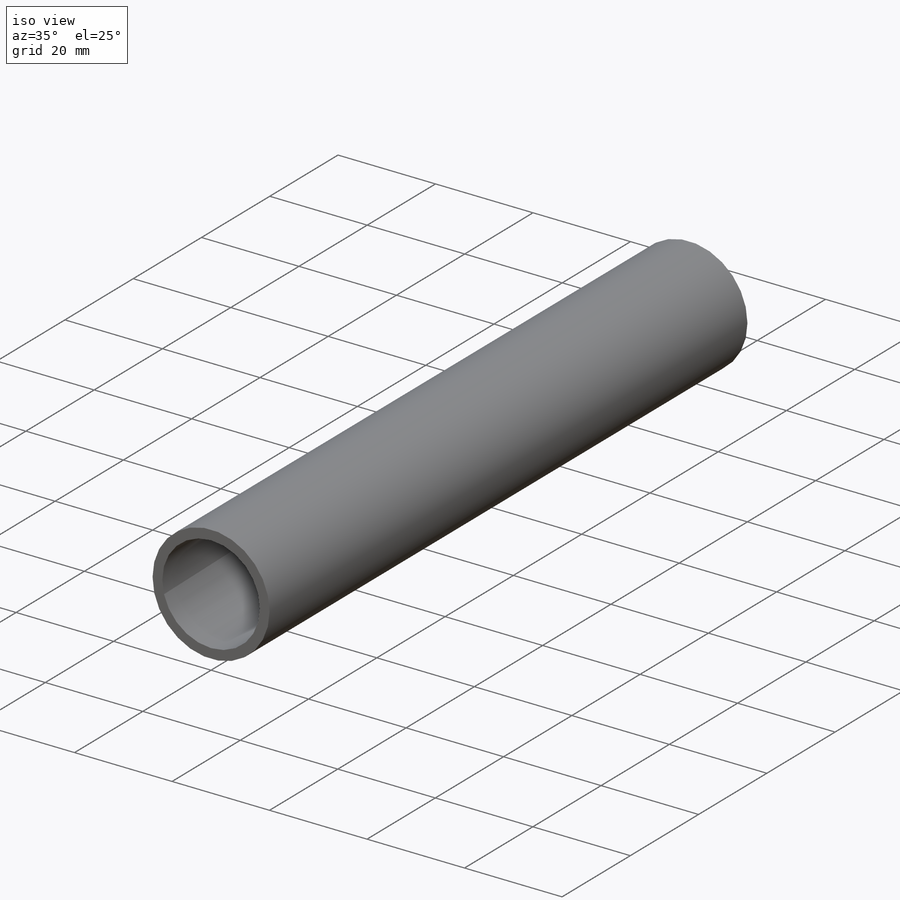
[diagram: iso view]
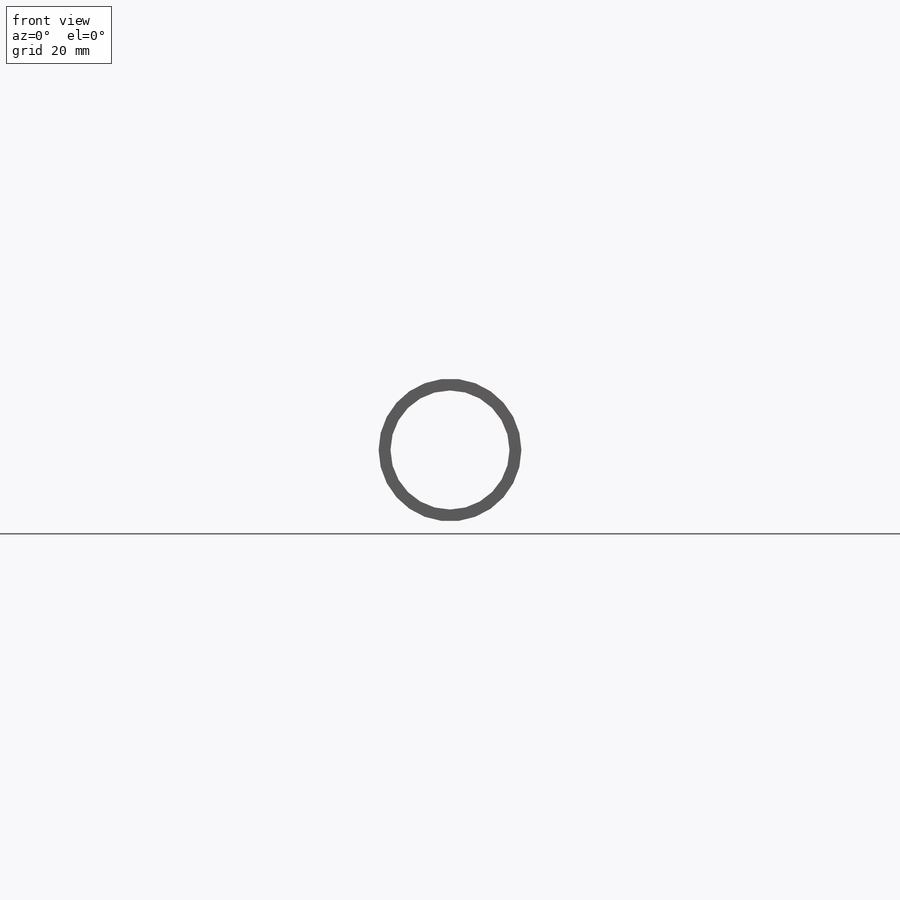
[diagram: front view]
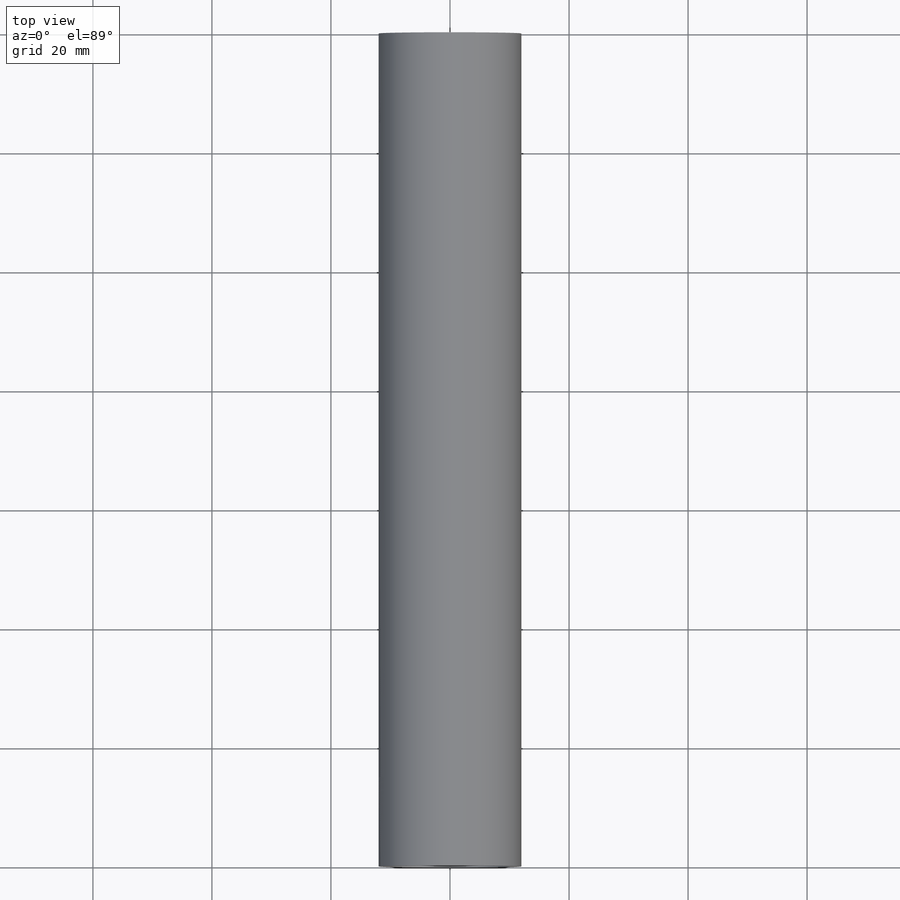
[diagram: top view]
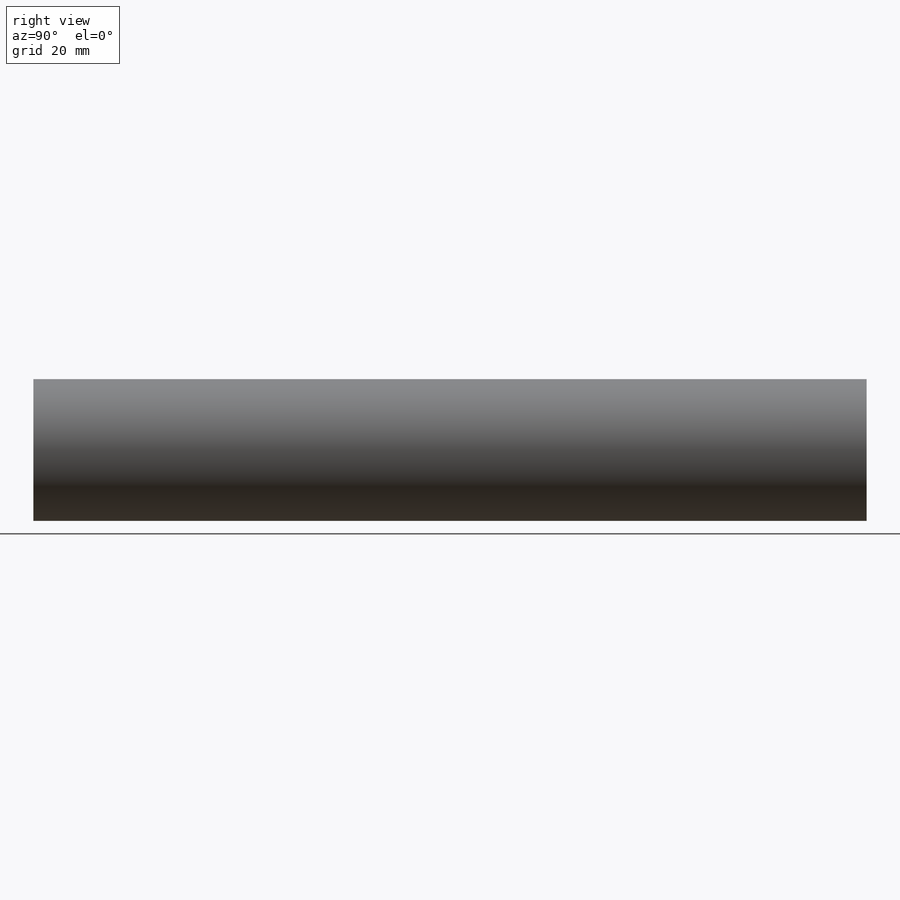
[diagram: right view]
SOLIDWORKS PART (.sldprt)
format: sldprt  version: not decoded by parser v0  size: 186,880 bytes
history: native  units: mm
features: thread x4, plane x3, material x1, sketch x1, extrude x1 (+13 scaffold rows collapsed)
feature tree (23):
  scaffold x13  (default folders/planes/origin — collapsed)
  material  "Materiale <non specificato>"
  plane  "Piano frontale"
  plane  "Piano superiore"
  plane  "Piano destro"
  sketch  "Schizzo1"  dims[D1=24.0mm D2=20.0mm]
  extrude  "Estrusione-Estrusione1"  [1 undecoded]
  thread  "Filettatura cosmetica1"  Diameter=15mm  [1 undecoded]
  thread  "Filettatura cosmetica2"  Diameter=15mm  [1 undecoded]
  thread  "Filettatura cosmetica3"  Diameter=15mm  [1 undecoded]
  thread  "Filettatura cosmetica4"  Diameter=15mm  [1 undecoded]
decode coverage: 5 of 6 modeling features carry decoded parameters
note: 5 parameter values undecoded
note: suppression state not decoded; provenance and decode notes live in map.json
